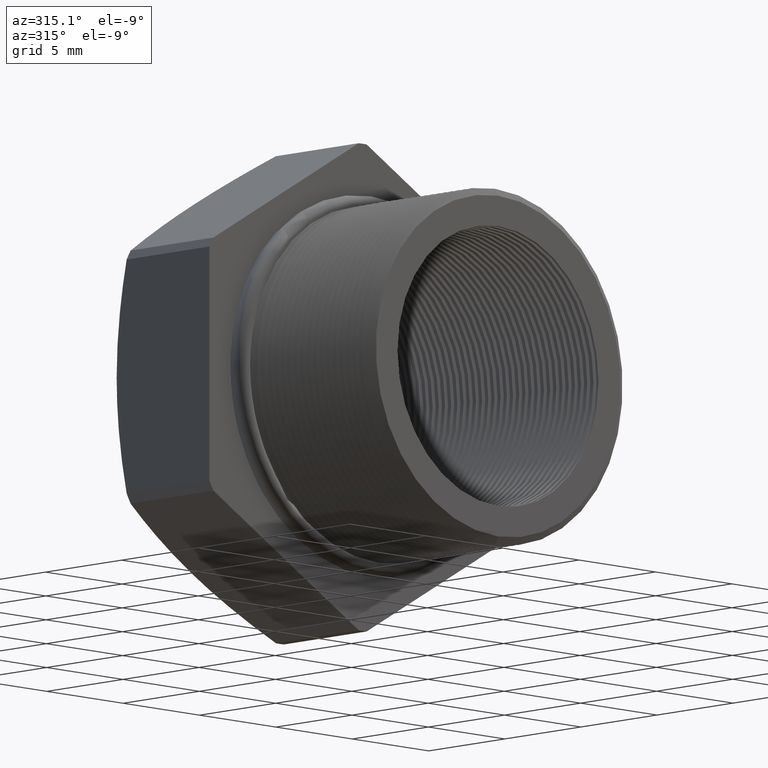
[diagram: clean part render]
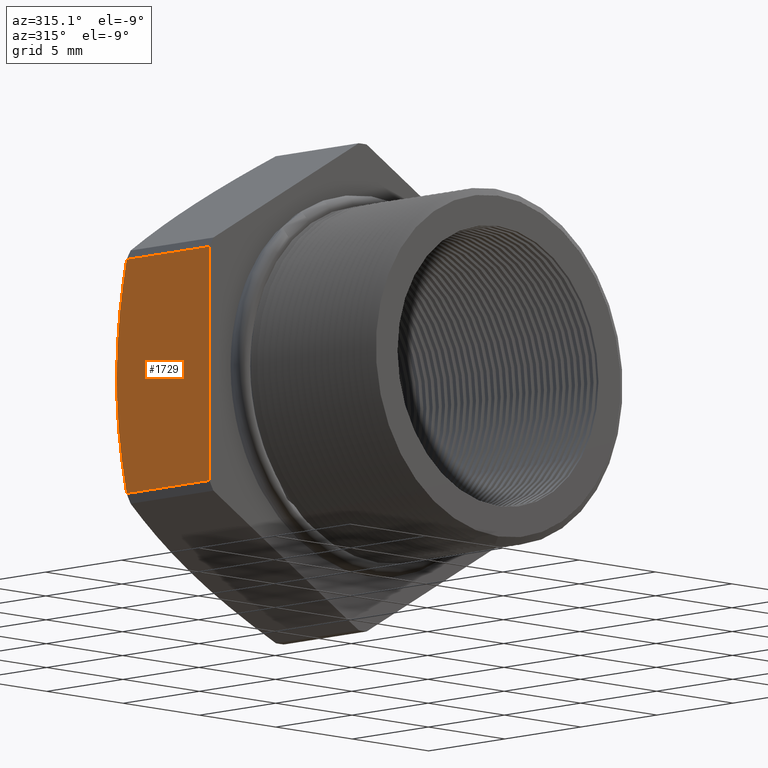
[diagram: same view with one face highlighted and labeled with its STEP entity id]
A machine part, auxiliary view. The second image highlights one B-rep face of the part: STEP entity #1729.
In plain terms, the highlighted planar face has unit normal (-1, 0, 0).
Its self-contained STEP definition (entity closure, byte-faithful):
#372 = EDGE_LOOP ( 'NONE', ( #9097, #9093, #9092, #9090, #9089 ) ) ;
#1578 = VERTEX_POINT ( 'NONE', #4780 ) ;
#1617 = EDGE_CURVE ( 'NONE', #1618, #1619, #4830, .T. ) ;
#1618 = VERTEX_POINT ( 'NONE', #4826 ) ;
#1619 = VERTEX_POINT ( 'NONE', #4825 ) ;
#1661 = EDGE_CURVE ( 'NONE', #1687, #1662, #4926, .T. ) ;
#1662 = VERTEX_POINT ( 'NONE', #4922 ) ;
#1687 = VERTEX_POINT ( 'NONE', #4991 ) ;
#1729 = ADVANCED_FACE ( 'NONE', ( #5032 ), #5089, .T. ) ;
#4780 = CARTESIAN_POINT ( 'NONE',  ( -0.3949999999999999600, 0.4075548905829479200, 0.0000000000000000000 ) ) ;
#4825 = CARTESIAN_POINT ( 'NONE',  ( -0.3949999999999999600, 0.3817680770869766300, -0.2162061284977833100 ) ) ;
#4826 = CARTESIAN_POINT ( 'NONE',  ( -0.3949999999999999600, 0.1675548905829479500, -0.2162061284977833100 ) ) ;
#4827 = DIRECTION ( 'NONE',  ( 0.0000000000000000000, 1.000000000000000000, 0.0000000000000000000 ) ) ;
#4828 = VECTOR ( 'NONE', #4827, 39.37007874015748100 ) ;
#4829 = CARTESIAN_POINT ( 'NONE',  ( -0.3949999999999999600, 0.0000000000000000000, -0.2162061284977833100 ) ) ;
#4830 = LINE ( 'NONE', #4829, #4828 ) ;
#4922 = CARTESIAN_POINT ( 'NONE',  ( -0.3949999999999999600, 0.1675548905829479500, 0.2162061284977833100 ) ) ;
#4923 = DIRECTION ( 'NONE',  ( -0.0000000000000000000, -1.000000000000000000, -0.0000000000000000000 ) ) ;
#4924 = VECTOR ( 'NONE', #4923, 39.37007874015748100 ) ;
#4925 = CARTESIAN_POINT ( 'NONE',  ( -0.3949999999999999600, 0.0000000000000000000, 0.2162061284977833100 ) ) ;
#4926 = LINE ( 'NONE', #4925, #4924 ) ;
#4991 = CARTESIAN_POINT ( 'NONE',  ( -0.3949999999999999600, 0.3817680770869766300, 0.2162061284977833100 ) ) ;
#5032 = FACE_OUTER_BOUND ( 'NONE', #372, .T. ) ;
#5085 = DIRECTION ( 'NONE',  ( 0.0000000000000000000, 0.0000000000000000000, 1.000000000000000000 ) ) ;
#5086 = DIRECTION ( 'NONE',  ( -1.000000000000000000, 0.0000000000000000000, 0.0000000000000000000 ) ) ;
#5087 = CARTESIAN_POINT ( 'NONE',  ( -0.3949999999999999600, 0.4075548905829479700, 0.2280533563299023400 ) ) ;
#5088 = AXIS2_PLACEMENT_3D ( 'NONE', #5087, #5086, #5085 ) ;
#5089 = PLANE ( 'NONE',  #5088 ) ;
#7677 = CARTESIAN_POINT ( 'NONE',  ( -0.3949999999999999600, 0.3893434243502461000, 0.1807051416627050200 ) ) ;
#7678 = CARTESIAN_POINT ( 'NONE',  ( -0.3949999999999999600, 0.3857283079575634100, 0.1985179992191221100 ) ) ;
#7679 = CARTESIAN_POINT ( 'NONE',  ( -0.3949999999999999600, 0.3817680770869766300, 0.2162061284977833100 ) ) ;
#7680 = B_SPLINE_CURVE_WITH_KNOTS ( 'NONE', 3,
 ( #7726, #7725, #7724, #7723, #7722, #7721 ),
 .UNSPECIFIED., .F., .F.,
 ( 4, 2, 4 ),
 ( 0.02869971587898497200, 0.03144188493539076800, 0.03418405399179656100 ),
 .UNSPECIFIED. ) ;
#7681 = B_SPLINE_CURVE_WITH_KNOTS ( 'NONE', 3,
 ( #7679, #7678, #7677, #7731, #7730, #7729, #7728, #7727 ),
 .UNSPECIFIED., .F., .F.,
 ( 4, 2, 2, 4 ),
 ( 0.02321907580153843500, 0.02458923582090007100, 0.02595939584026170400, 0.02869971587898497200 ),
 .UNSPECIFIED. ) ;
#7682 = DIRECTION ( 'NONE',  ( 0.0000000000000000000, 0.0000000000000000000, -1.000000000000000000 ) ) ;
#7683 = VECTOR ( 'NONE', #7682, 39.37007874015748100 ) ;
#7684 = CARTESIAN_POINT ( 'NONE',  ( -0.3949999999999999600, 0.1675548905829479500, 0.0000000000000000000 ) ) ;
#7685 = LINE ( 'NONE', #7684, #7683 ) ;
#7721 = CARTESIAN_POINT ( 'NONE',  ( -0.3949999999999999600, 0.3817680770869766300, -0.2162061284977833100 ) ) ;
#7722 = CARTESIAN_POINT ( 'NONE',  ( -0.3950000000000000200, 0.3897427823618850900, -0.1805875945104193400 ) ) ;
#7723 = CARTESIAN_POINT ( 'NONE',  ( -0.3949999999999999600, 0.3963023347622921500, -0.1444172013853727300 ) ) ;
#7724 = CARTESIAN_POINT ( 'NONE',  ( -0.3950000000000000200, 0.4052017611603142000, -0.07226633245033037300 ) ) ;
#7725 = CARTESIAN_POINT ( 'NONE',  ( -0.3950000000000000200, 0.4075548905829479700, -0.03615391846082491300 ) ) ;
#7726 = CARTESIAN_POINT ( 'NONE',  ( -0.3949999999999999600, 0.4075548905829479200, 0.0000000000000000000 ) ) ;
#7727 = CARTESIAN_POINT ( 'NONE',  ( -0.3949999999999999600, 0.4075548905829479200, 0.0000000000000000000 ) ) ;
#7728 = CARTESIAN_POINT ( 'NONE',  ( -0.3949999999999999600, 0.4075548905829478600, 0.03612954022842879800 ) ) ;
#7729 = CARTESIAN_POINT ( 'NONE',  ( -0.3949999999999999600, 0.4052039355878278600, 0.07230054657564827200 ) ) ;
#7730 = CARTESIAN_POINT ( 'NONE',  ( -0.3950000000000000200, 0.3984951459428831600, 0.1266131864775284200 ) ) ;
#7731 = CARTESIAN_POINT ( 'NONE',  ( -0.3949999999999999100, 0.3957261188471742400, 0.1447731166213773700 ) ) ;
#9088 = EDGE_CURVE ( 'NONE', #1662, #1618, #7685, .T. ) ;
#9089 = ORIENTED_EDGE ( 'NONE', *, *, #9088, .F. ) ;
#9090 = ORIENTED_EDGE ( 'NONE', *, *, #1617, .F. ) ;
#9091 = EDGE_CURVE ( 'NONE', #1687, #1578, #7681, .T. ) ;
#9092 = ORIENTED_EDGE ( 'NONE', *, *, #9094, .T. ) ;
#9093 = ORIENTED_EDGE ( 'NONE', *, *, #9091, .T. ) ;
#9094 = EDGE_CURVE ( 'NONE', #1578, #1619, #7680, .T. ) ;
#9097 = ORIENTED_EDGE ( 'NONE', *, *, #1661, .F. ) ;